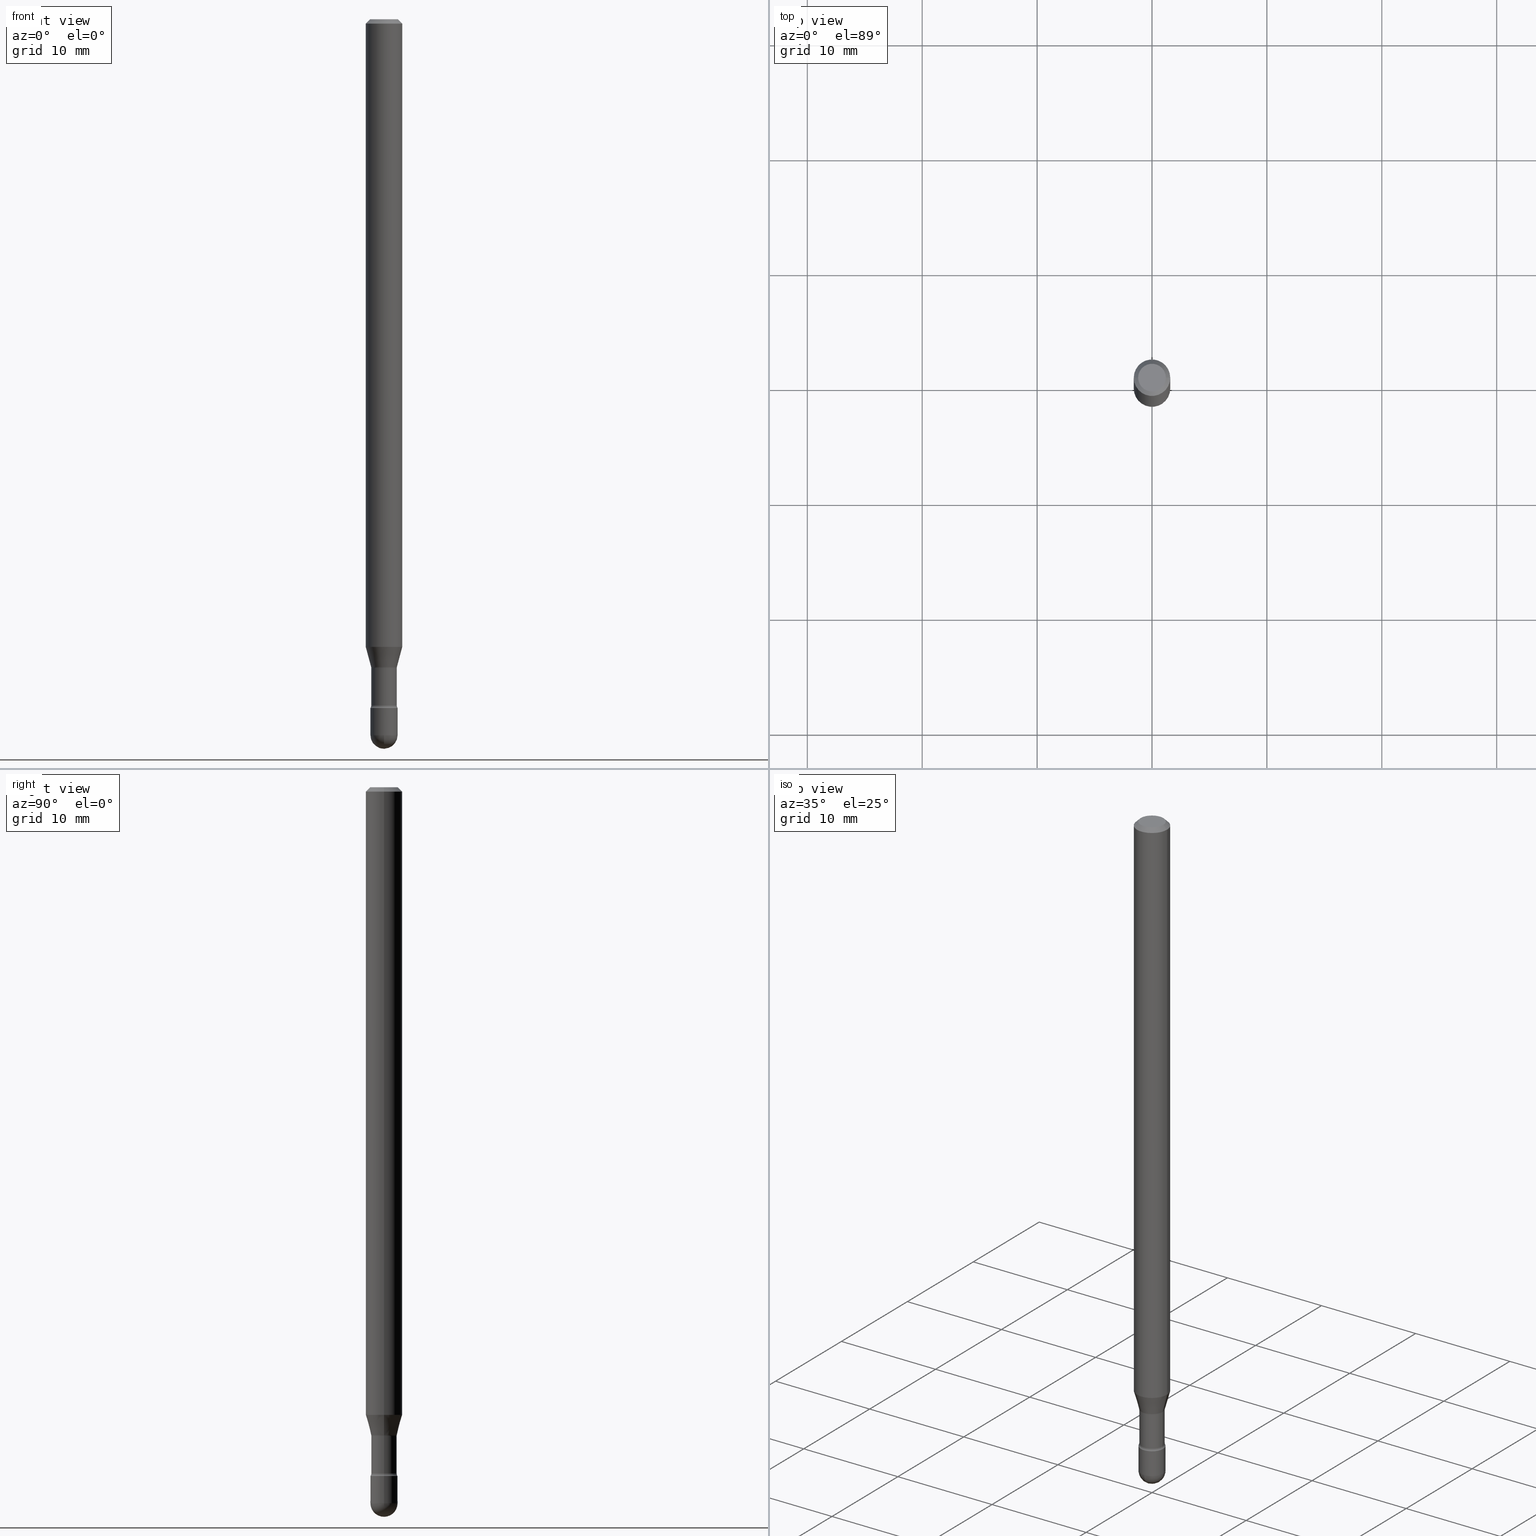
[diagram: canonical four-view strip — front | top / right | iso, engineering-drawing reading convention]
A machine part, canonical four-view strip (front | top / right | iso — engineering-drawing reading convention). The complete STEP part file that produces these views, byte-faithful:
ISO-10303-21;
HEADER;
FILE_DESCRIPTION (( 'STEP AP203' ),
    '1' );
FILE_NAME ('09557.STEP',
    '2024-04-10T00:42:12',
    ( '' ),
    ( '' ),
    'SwSTEP 2.0',
    'SolidWorks 2023',
    '' );
FILE_SCHEMA (( 'CONFIG_CONTROL_DESIGN' ));
ENDSEC;

DATA;
#1 = CC_DESIGN_PERSON_AND_ORGANIZATION_ASSIGNMENT ( #15, #406, ( #519 ) ) ;
#2 = ORIENTED_EDGE ( 'NONE', *, *, #461, .F. ) ;
#3 = AXIS2_PLACEMENT_3D ( 'NONE', #68, #63, #472 ) ;
#4 = DIRECTION ( 'NONE',  ( 1.000000000000000000, -6.982962677686267499E-15, 4.876176775795936353E-29 ) ) ;
#5 = CIRCLE ( 'NONE', #490, 0.04649999999999999967 ) ;
#6 = CARTESIAN_POINT ( 'NONE',  ( -0.06250000000000000000, 4.440892098500642925E-16, 4.780733988912429571E-16 ) ) ;
#7 = APPROVAL_PERSON_ORGANIZATION ( #106, #121, #281 ) ;
#8 = DIRECTION ( 'NONE',  ( -2.445468806185136877E-29, 3.491481338843145188E-15, 1.000000000000000000 ) ) ;
#9 = CARTESIAN_POINT ( 'NONE',  ( 5.999957715975233376E-29, -8.566349464851658011E-15, -2.453500000000000014 ) ) ;
#10 = DIRECTION ( 'NONE',  ( 2.445468806185136597E-29, -3.491481338843145583E-15, -1.000000000000000000 ) ) ;
#11 = DIRECTION ( 'NONE',  ( -2.445468806185136597E-29, 3.491481338843145583E-15, 1.000000000000000000 ) ) ;
#12 = ADVANCED_FACE ( 'NONE', ( #254 ), #35, .T. ) ;
#13 = CARTESIAN_POINT ( 'NONE',  ( -0.04421111260566398804, -7.433781210138750034E-15, -2.219092501787273353 ) ) ;
#14 = DIRECTION ( 'NONE',  ( -2.445468806185136877E-29, 3.491481338843145188E-15, 1.000000000000000000 ) ) ;
#15 = PERSON_AND_ORGANIZATION ( #183, #477 ) ;
#16 = DIRECTION ( 'NONE',  ( -2.445468806185136597E-29, 3.491481338843145583E-15, 1.000000000000000000 ) ) ;
#17 = AXIS2_PLACEMENT_3D ( 'NONE', #200, #376, #76 ) ;
#18 = SECURITY_CLASSIFICATION_LEVEL ( 'unclassified' ) ;
#19 = DIRECTION ( 'NONE',  ( -2.445468806185136597E-29, 3.491481338843145583E-15, 1.000000000000000000 ) ) ;
#20 = DIRECTION ( 'NONE',  ( 1.000000000000000000, -6.982962677686260400E-15, 0.000000000000000000 ) ) ;
#21 = CARTESIAN_POINT ( 'NONE',  ( 5.259805878476644450E-29, -7.509608801466092059E-15, -2.150837444817705446 ) ) ;
#22 = ADVANCED_FACE ( 'NONE', ( #346 ), #43, .T. ) ;
#23 = ORIENTED_EDGE ( 'NONE', *, *, #255, .T. ) ;
#24 = DIRECTION ( 'NONE',  ( -0.2588190451025213501, 5.211531920934551042E-15, 0.9659258262890682012 ) ) ;
#25 = ORIENTED_EDGE ( 'NONE', *, *, #356, .T. ) ;
#26 = SPHERICAL_SURFACE ( 'NONE', #297, 0.04649999999999995109 ) ;
#27 = CARTESIAN_POINT ( 'NONE',  ( 0.04370000000000000273, -8.066630456163594100E-15, -2.222974787463811275 ) ) ;
#28 = AXIS2_PLACEMENT_3D ( 'NONE', #401, #409, #217 ) ;
#29 = LOCAL_TIME ( 20, 42, 12.00000000000000000, #445 ) ;
#30 = ORIENTED_EDGE ( 'NONE', *, *, #164, .F. ) ;
#31 = DIRECTION ( 'NONE',  ( 6.982962677686265922E-15, 1.000000000000000000, -5.874941921858636379E-15 ) ) ;
#32 = ORIENTED_EDGE ( 'NONE', *, *, #528, .F. ) ;
#33 = CC_DESIGN_PERSON_AND_ORGANIZATION_ASSIGNMENT ( #341, #474, ( #480 ) ) ;
#34 = DIRECTION ( 'NONE',  ( 0.000000000000000000, 0.000000000000000000, 1.000000000000000000 ) ) ;
#35 = CYLINDRICAL_SURFACE ( 'NONE', #339, 0.04370000000000005130 ) ;
#36 = AXIS2_PLACEMENT_3D ( 'NONE', #74, #80, #262 ) ;
#37 = DIRECTION ( 'NONE',  ( -2.445468806185136597E-29, 3.491481338843145583E-15, 1.000000000000000000 ) ) ;
#38 = CARTESIAN_POINT ( 'NONE',  ( -3.304023721283863841E-16, -0.04650000000000854145, -2.453500000000000014 ) ) ;
#39 = AXIS2_PLACEMENT_3D ( 'NONE', #558, #517, #129 ) ;
#40 = AXIS2_PLACEMENT_3D ( 'NONE', #331, #458, #453 ) ;
#41 = DIRECTION ( 'NONE',  ( -2.445468806185136597E-29, 3.491481338843145583E-15, 1.000000000000000000 ) ) ;
#42 = TOROIDAL_SURFACE ( 'NONE', #87, 0.05870000000000000911, 0.01499999999999991618 ) ;
#43 = CYLINDRICAL_SURFACE ( 'NONE', #426, 0.04649999999999999967 ) ;
#44 = CIRCLE ( 'NONE', #419, 0.06250000000000000000 ) ;
#45 = MANIFOLD_SOLID_BREP ( 'Body-Move/Copy2[2]', #347 ) ;
#46 = DIRECTION ( 'NONE',  ( 1.000000000000000000, -6.982962677686266711E-15, 4.858289198259657046E-29 ) ) ;
#47 = EDGE_CURVE ( 'NONE', #486, #62, #532, .T. ) ;
#48 = FACE_OUTER_BOUND ( 'NONE', #512, .T. ) ;
#49 = PLANE ( 'NONE',  #167 ) ;
#50 = DIRECTION ( 'NONE',  ( 0.2588190451025213501, 1.565188264969621968E-15, 0.9659258262890682012 ) ) ;
#51 = PLANE ( 'NONE',  #504 ) ;
#52 = CALENDAR_DATE ( 2024, 9, 4 ) ;
#53 = CIRCLE ( 'NONE', #476, 0.04649999999999995109 ) ;
#54 = ORIENTED_EDGE ( 'NONE', *, *, #418, .F. ) ;
#55 = DATE_AND_TIME ( #52, #29 ) ;
#56 = DIRECTION ( 'NONE',  ( -2.445468806185136597E-29, 3.491481338843145583E-15, 1.000000000000000000 ) ) ;
#57 = COORDINATED_UNIVERSAL_TIME_OFFSET ( 5, 0, .BEHIND. ) ;
#58 = ORIENTED_EDGE ( 'NONE', *, *, #219, .F. ) ;
#59 = DIRECTION ( 'NONE',  ( 1.000000000000000000, -6.982962677686266711E-15, 4.852736867747366207E-29 ) ) ;
#60 = DIRECTION ( 'NONE',  ( 1.000000000000000000, -6.982962677686266711E-15, 4.852736867747366207E-29 ) ) ;
#61 = EDGE_CURVE ( 'NONE', #411, #372, #156, .T. ) ;
#62 = VERTEX_POINT ( 'NONE', #75 ) ;
#63 = DIRECTION ( 'NONE',  ( -2.445468806185136597E-29, 3.491481338843145583E-15, 1.000000000000000000 ) ) ;
#64 = CIRCLE ( 'NONE', #3, 0.04370000000000009294 ) ;
#65 = ORIENTED_EDGE ( 'NONE', *, *, #150, .F. ) ;
#66 = CARTESIAN_POINT ( 'NONE',  ( 0.000000000000000000, 0.000000000000000000, 0.000000000000000000 ) ) ;
#67 = ORIENTED_EDGE ( 'NONE', *, *, #228, .F. ) ;
#68 = CARTESIAN_POINT ( 'NONE',  ( 5.749964850443326902E-29, -8.209425907846575104E-15, -2.351273030308291823 ) ) ;
#69 = ORIENTED_EDGE ( 'NONE', *, *, #71, .T. ) ;
#70 = DIRECTION ( 'NONE',  ( 1.000000000000000000, -6.982962677686266711E-15, 0.000000000000000000 ) ) ;
#71 = EDGE_CURVE ( 'NONE', #555, #246, #256, .T. ) ;
#72 = VECTOR ( 'NONE', #177, 39.37007874015748143 ) ;
#73 = ORIENTED_EDGE ( 'NONE', *, *, #435, .F. ) ;
#74 = CARTESIAN_POINT ( 'NONE',  ( 3.668203209277725232E-31, -5.237222008264747365E-17, -0.01500000000000008271 ) ) ;
#75 = CARTESIAN_POINT ( 'NONE',  ( 0.04649999999999995803, -8.564603724182234141E-15, -2.359999999999999876 ) ) ;
#76 = DIRECTION ( 'NONE',  ( 1.000000000000000000, -6.982962677686280121E-15, 0.000000000000000000 ) ) ;
#77 = PERSON_AND_ORGANIZATION ( #183, #477 ) ;
#78 = AXIS2_PLACEMENT_3D ( 'NONE', #116, #310, #479 ) ;
#79 = CC_DESIGN_PERSON_AND_ORGANIZATION_ASSIGNMENT ( #184, #284, ( #349 ) ) ;
#80 = DIRECTION ( 'NONE',  ( 2.445468806185136597E-29, -3.491481338843145583E-15, -1.000000000000000000 ) ) ;
#81 = ORIENTED_EDGE ( 'NONE', *, *, #435, .T. ) ;
#82 = VERTEX_POINT ( 'NONE', #38 ) ;
#83 = ADVANCED_FACE ( 'NONE', ( #560 ), #379, .F. ) ;
#84 = AXIS2_PLACEMENT_3D ( 'NONE', #226, #233, #20 ) ;
#85 = CARTESIAN_POINT ( 'NONE',  ( 5.999957715975233376E-29, -8.566349464851658011E-15, -2.453500000000000014 ) ) ;
#86 = CIRCLE ( 'NONE', #231, 0.01500000000000001853 ) ;
#87 = AXIS2_PLACEMENT_3D ( 'NONE', #538, #227, #416 ) ;
#88 = CARTESIAN_POINT ( 'NONE',  ( 5.999957715975233376E-29, -8.566349464851658011E-15, -2.453500000000000014 ) ) ;
#89 = DIRECTION ( 'NONE',  ( 2.438088387897960049E-29, -3.491481338843145188E-15, -1.000000000000000000 ) ) ;
#90 = CARTESIAN_POINT ( 'NONE',  ( -0.04749999999999999362, 3.578768372314208041E-16, -8.274703207154778150E-17 ) ) ;
#91 = DIRECTION ( 'NONE',  ( 1.000000000000000000, -6.982962677686259611E-15, 0.000000000000000000 ) ) ;
#92 = EDGE_CURVE ( 'NONE', #489, #343, #399, .T. ) ;
#93 = DIRECTION ( 'NONE',  ( 1.000000000000000000, -6.982962677686263555E-15, 0.000000000000000000 ) ) ;
#94 = DIRECTION ( 'NONE',  ( 1.000000000000000000, -6.982962677686267499E-15, 4.884662768193073002E-29 ) ) ;
#95 = ORIENTED_EDGE ( 'NONE', *, *, #210, .T. ) ;
#96 = EDGE_CURVE ( 'NONE', #372, #411, #283, .T. ) ;
#97 = CARTESIAN_POINT ( 'NONE',  ( 0.06250000000000000000, -4.364351673553899931E-16, 4.780733988912490708E-16 ) ) ;
#98 = AXIS2_PLACEMENT_3D ( 'NONE', #161, #218, #70 ) ;
#99 = FACE_OUTER_BOUND ( 'NONE', #199, .T. ) ;
#100 = AXIS2_PLACEMENT_3D ( 'NONE', #322, #241, #91 ) ;
#101 = ORIENTED_EDGE ( 'NONE', *, *, #238, .F. ) ;
#102 = DIRECTION ( 'NONE',  ( 1.000000000000000000, -6.982962677686263555E-15, 0.000000000000000000 ) ) ;
#103 = CARTESIAN_POINT ( 'NONE',  ( 5.749964850443326902E-29, -8.209425907846575104E-15, -2.351273030308291823 ) ) ;
#104 = DIRECTION ( 'NONE',  ( -2.445468806185136597E-29, 3.491481338843145583E-15, 1.000000000000000000 ) ) ;
#105 = EDGE_CURVE ( 'NONE', #456, #555, #288, .T. ) ;
#106 = PERSON_AND_ORGANIZATION ( #183, #477 ) ;
#107 = ORIENTED_EDGE ( 'NONE', *, *, #112, .F. ) ;
#108 = AXIS2_PLACEMENT_3D ( 'NONE', #275, #180, #192 ) ;
#109 = EDGE_LOOP ( 'NONE', ( #240, #209, #452, #269, #338 ) ) ;
#110 = EDGE_CURVE ( 'NONE', #163, #345, #364, .T. ) ;
#111 = ORIENTED_EDGE ( 'NONE', *, *, #96, .T. ) ;
#112 = EDGE_CURVE ( 'NONE', #377, #293, #404, .T. ) ;
#113 = ORIENTED_EDGE ( 'NONE', *, *, #440, .F. ) ;
#114 = AXIS2_PLACEMENT_3D ( 'NONE', #366, #143, #327 ) ;
#115 = CIRCLE ( 'NONE', #392, 0.04649999999999999967 ) ;
#116 = CARTESIAN_POINT ( 'NONE',  ( 5.771306382596922099E-29, -8.239895959669823433E-15, -2.359999999999999876 ) ) ;
#117 = AXIS2_PLACEMENT_3D ( 'NONE', #324, #292, #102 ) ;
#118 = CARTESIAN_POINT ( 'NONE',  ( 5.771306382596922099E-29, -8.239895959669823433E-15, -2.359999999999999876 ) ) ;
#119 = LINE ( 'NONE', #481, #354 ) ;
#120 = CALENDAR_DATE ( 2024, 9, 4 ) ;
#121 = APPROVAL ( #294, 'UNSPECIFIED' ) ;
#122 = CIRCLE ( 'NONE', #380, 0.04370000000000000273 ) ;
#123 = CARTESIAN_POINT ( 'NONE',  ( 5.749964850443326902E-29, -8.209425907846575104E-15, -2.351273030308291823 ) ) ;
#124 = ORIENTED_EDGE ( 'NONE', *, *, #61, .T. ) ;
#125 = ADVANCED_FACE ( 'NONE', ( #529 ), #230, .F. ) ;
#126 = DIRECTION ( 'NONE',  ( -2.445468806185136597E-29, 3.491481338843145583E-15, 1.000000000000000000 ) ) ;
#127 = EDGE_CURVE ( 'NONE', #355, #456, #340, .T. ) ;
#128 = COORDINATED_UNIVERSAL_TIME_OFFSET ( 5, 0, .BEHIND. ) ;
#129 = DIRECTION ( 'NONE',  ( 1.000000000000000000, -6.982962677686260400E-15, 0.000000000000000000 ) ) ;
#130 = ORIENTED_EDGE ( 'NONE', *, *, #210, .F. ) ;
#131 = FACE_OUTER_BOUND ( 'NONE', #550, .T. ) ;
#132 = FACE_OUTER_BOUND ( 'NONE', #109, .T. ) ;
#133 = DIRECTION ( 'NONE',  ( -1.000000000000000000, 6.982962677686266711E-15, 0.000000000000000000 ) ) ;
#134 = ORIENTED_EDGE ( 'NONE', *, *, #164, .T. ) ;
#135 = CYLINDRICAL_SURFACE ( 'NONE', #365, 0.04370000000000005130 ) ;
#136 = CIRCLE ( 'NONE', #40, 0.01499999999999991618 ) ;
#137 = DIRECTION ( 'NONE',  ( 1.000000000000000000, -6.982962677686263555E-15, 0.000000000000000000 ) ) ;
#138 = CARTESIAN_POINT ( 'NONE',  ( 5.999957715975233376E-29, -8.566349464851658011E-15, -2.453500000000000014 ) ) ;
#139 = DIRECTION ( 'NONE',  ( -2.445468806185136597E-29, 3.491481338843145583E-15, 1.000000000000000000 ) ) ;
#140 = DIRECTION ( 'NONE',  ( -2.438088387897960049E-29, 3.491481338843145188E-15, 1.000000000000000000 ) ) ;
#141 = PRODUCT_RELATED_PRODUCT_CATEGORY ( 'detail', '', ( #332 ) ) ;
#142 = ORIENTED_EDGE ( 'NONE', *, *, #208, .F. ) ;
#143 = DIRECTION ( 'NONE',  ( -2.445468806185136597E-29, 3.491481338843145583E-15, 1.000000000000000000 ) ) ;
#144 = ORIENTED_EDGE ( 'NONE', *, *, #359, .T. ) ;
#145 = CARTESIAN_POINT ( 'NONE',  ( 3.247077645124712036E-16, 0.04649999999999141626, -2.453500000000000458 ) ) ;
#146 = VECTOR ( 'NONE', #496, 39.37007874015748143 ) ;
#147 = CYLINDRICAL_SURFACE ( 'NONE', #525, 0.06250000000000000000 ) ;
#148 = CARTESIAN_POINT ( 'NONE',  ( -0.06250000000000000000, 3.840629472727441958E-16, -0.01500000000000008271 ) ) ;
#149 = ORIENTED_EDGE ( 'NONE', *, *, #461, .T. ) ;
#150 = EDGE_CURVE ( 'NONE', #487, #547, #502, .T. ) ;
#151 = DIRECTION ( 'NONE',  ( -1.000000000000000000, 6.982962677686265922E-15, -4.883557194083111780E-29 ) ) ;
#152 = VERTEX_POINT ( 'NONE', #315 ) ;
#153 = DIRECTION ( 'NONE',  ( -2.445468806185136597E-29, 3.491481338843145583E-15, 1.000000000000000000 ) ) ;
#154 = DIRECTION ( 'NONE',  ( -2.445468806185136597E-29, 3.491481338843145583E-15, 1.000000000000000000 ) ) ;
#155 = ORIENTED_EDGE ( 'NONE', *, *, #96, .F. ) ;
#156 = CIRCLE ( 'NONE', #78, 0.04649999999999999967 ) ;
#157 = VECTOR ( 'NONE', #216, 39.37007874015748143 ) ;
#158 = ORIENTED_EDGE ( 'NONE', *, *, #219, .T. ) ;
#159 = DIRECTION ( 'NONE',  ( -2.438088387897960049E-29, 3.491481338843145188E-15, 1.000000000000000000 ) ) ;
#160 = ORIENTED_EDGE ( 'NONE', *, *, #110, .F. ) ;
#161 = CARTESIAN_POINT ( 'NONE',  ( 3.668203209277725232E-31, -5.237222008264747365E-17, -0.01500000000000008271 ) ) ;
#162 = CARTESIAN_POINT ( 'NONE',  ( 0.04421111260566398804, -8.056644608421349560E-15, -2.219092501787273353 ) ) ;
#163 = VERTEX_POINT ( 'NONE', #90 ) ;
#164 = EDGE_CURVE ( 'NONE', #357, #62, #136, .T. ) ;
#165 = CIRCLE ( 'NONE', #518, 0.04370000000000009294 ) ;
#166 = ORIENTED_EDGE ( 'NONE', *, *, #260, .T. ) ;
#167 = AXIS2_PLACEMENT_3D ( 'NONE', #454, #140, #237 ) ;
#168 = EDGE_CURVE ( 'NONE', #555, #487, #485, .T. ) ;
#169 = SHAPE_DEFINITION_REPRESENTATION ( #430, #546 ) ;
#170 = APPROVAL_ROLE ( '' ) ;
#171 = CIRCLE ( 'NONE', #244, 0.01499999999999991618 ) ;
#172 = AXIS2_PLACEMENT_3D ( 'NONE', #367, #412, #60 ) ;
#173 = DATE_TIME_ROLE ( 'classification_date' ) ;
#174 = ORIENTED_EDGE ( 'NONE', *, *, #264, .T. ) ;
#175 = CARTESIAN_POINT ( 'NONE',  ( -1.169113584055446105E-44, 1.669184350826100908E-30, 4.780733988912460139E-16 ) ) ;
#176 = ADVANCED_FACE ( 'NONE', ( #545 ), #147, .T. ) ;
#177 = DIRECTION ( 'NONE',  ( -2.445468806185136877E-29, 3.491481338843145188E-15, 1.000000000000000000 ) ) ;
#178 = APPROVAL_STATUS ( 'not_yet_approved' ) ;
#179 = VECTOR ( 'NONE', #8, 39.37007874015748143 ) ;
#180 = DIRECTION ( 'NONE',  ( -2.445468806185136597E-29, 3.491481338843145583E-15, 1.000000000000000000 ) ) ;
#181 = CC_DESIGN_PERSON_AND_ORGANIZATION_ASSIGNMENT ( #263, #530, ( #332 ) ) ;
#182 = CARTESIAN_POINT ( 'NONE',  ( -0.04370000000000009294, -7.904206159930393879E-15, -2.351273030308291823 ) ) ;
#183 = PERSON ( 'UNSPECIFIED', 'UNSPECIFIED', 'UNSPECIFIED', ('UNSPECIFIED'), ('UNSPECIFIED'), ('UNSPECIFIED') ) ;
#184 = PERSON_AND_ORGANIZATION ( #183, #477 ) ;
#185 = CARTESIAN_POINT ( 'NONE',  ( -0.05870000000000000911, -7.792337321955396477E-15, -2.351273030308291823 ) ) ;
#186 = DIMENSIONAL_EXPONENTS ( 1.000000000000000000, 0.000000000000000000, 0.000000000000000000, 0.000000000000000000, 0.000000000000000000, 0.000000000000000000, 0.000000000000000000 ) ;
#187 = DIRECTION ( 'NONE',  ( -2.445468806185136597E-29, 3.491481338843145583E-15, 1.000000000000000000 ) ) ;
#188 = CARTESIAN_POINT ( 'NONE',  ( 0.06250000000000000000, -4.888073874380391431E-16, -0.01500000000000008271 ) ) ;
#189 = EDGE_LOOP ( 'NONE', ( #124, #111 ) ) ;
#190 = PERSON_AND_ORGANIZATION_ROLE ( 'creator' ) ;
#191 = LINE ( 'NONE', #290, #157 ) ;
#192 = DIRECTION ( 'NONE',  ( 1.000000000000000000, -6.982962677686262766E-15, 0.000000000000000000 ) ) ;
#193 = EDGE_CURVE ( 'NONE', #152, #377, #5, .T. ) ;
#194 = ORIENTED_EDGE ( 'NONE', *, *, #168, .F. ) ;
#195 = ADVANCED_FACE ( 'NONE', ( #132 ), #446, .T. ) ;
#196 = VECTOR ( 'NONE', #229, 39.37007874015748143 ) ;
#197 = CONICAL_SURFACE ( 'NONE', #36, 0.06250000000000000000, 0.7853981633974483900 ) ;
#198 = DIRECTION ( 'NONE',  ( -1.000000000000000000, 6.982962677686265922E-15, -4.876176775795935793E-29 ) ) ;
#199 = EDGE_LOOP ( 'NONE', ( #67, #174, #375, #30 ) ) ;
#200 = CARTESIAN_POINT ( 'NONE',  ( 5.999957715975233376E-29, -8.566349464851658011E-15, -2.453500000000000014 ) ) ;
#201 = ORIENTED_EDGE ( 'NONE', *, *, #439, .T. ) ;
#202 = DIRECTION ( 'NONE',  ( 1.000000000000000000, -6.982962677686263555E-15, 0.000000000000000000 ) ) ;
#203 = ORIENTED_EDGE ( 'NONE', *, *, #105, .F. ) ;
#204 = EDGE_CURVE ( 'NONE', #345, #547, #191, .T. ) ;
#205 = CIRCLE ( 'NONE', #428, 0.04370000000000000273 ) ;
#206 = ORIENTED_EDGE ( 'NONE', *, *, #440, .T. ) ;
#207 = DIRECTION ( 'NONE',  ( 1.000000000000000000, -6.982962677686267499E-15, 4.876176775795936353E-29 ) ) ;
#208 = EDGE_CURVE ( 'NONE', #345, #163, #348, .T. ) ;
#209 = ORIENTED_EDGE ( 'NONE', *, *, #326, .T. ) ;
#210 = EDGE_CURVE ( 'NONE', #456, #343, #86, .T. ) ;
#211 = CARTESIAN_POINT ( 'NONE',  ( 5.436215499678784243E-29, -7.761474987148704232E-15, -2.222974787463811275 ) ) ;
#212 = CLOSED_SHELL ( 'NONE', ( #195, #236, #224, #410, #22 ) ) ;
#213 = CONICAL_SURFACE ( 'NONE', #535, 0.04421111260566398804, 0.2617993877991500740 ) ;
#214 =( GEOMETRIC_REPRESENTATION_CONTEXT ( 3 ) GLOBAL_UNCERTAINTY_ASSIGNED_CONTEXT ( ( #438 ) ) GLOBAL_UNIT_ASSIGNED_CONTEXT ( ( #552, #342, #252 ) ) REPRESENTATION_CONTEXT ( 'NONE', 'WORKASPACE' ) );
#215 = DESIGN_CONTEXT ( 'detailed design', #301, 'design' ) ;
#216 = DIRECTION ( 'NONE',  ( 0.7071067811865475727, -7.319954787623256045E-15, -0.7071067811865474617 ) ) ;
#217 = DIRECTION ( 'NONE',  ( 1.000000000000000000, -6.982962677686267499E-15, 4.884662768193073002E-29 ) ) ;
#218 = DIRECTION ( 'NONE',  ( -2.445468806185136597E-29, 3.491481338843145583E-15, 1.000000000000000000 ) ) ;
#219 = EDGE_CURVE ( 'NONE', #547, #246, #44, .T. ) ;
#220 = ADVANCED_FACE ( 'NONE', ( #353 ), #197, .T. ) ;
#221 = ORIENTED_EDGE ( 'NONE', *, *, #238, .T. ) ;
#222 = CIRCLE ( 'NONE', #286, 0.04649999999999995109 ) ;
#223 = ORIENTED_EDGE ( 'NONE', *, *, #326, .F. ) ;
#224 = ADVANCED_FACE ( 'NONE', ( #390 ), #566, .T. ) ;
#225 = ORIENTED_EDGE ( 'NONE', *, *, #344, .T. ) ;
#226 = CARTESIAN_POINT ( 'NONE',  ( 5.771306382596922099E-29, -8.239895959669823433E-15, -2.359999999999999876 ) ) ;
#227 = DIRECTION ( 'NONE',  ( -2.445468806185136597E-29, 3.491481338843145583E-15, 1.000000000000000000 ) ) ;
#228 = EDGE_CURVE ( 'NONE', #489, #357, #165, .T. ) ;
#229 = DIRECTION ( 'NONE',  ( -2.445468806185136877E-29, 3.491481338843145188E-15, 1.000000000000000000 ) ) ;
#230 = TOROIDAL_SURFACE ( 'NONE', #268, 0.05870000000000000218, 0.01500000000000002373 ) ;
#231 = AXIS2_PLACEMENT_3D ( 'NONE', #397, #460, #523 ) ;
#232 = CIRCLE ( 'NONE', #100, 0.01500000000000001853 ) ;
#233 = DIRECTION ( 'NONE',  ( -2.445468806185136597E-29, 3.491481338843145583E-15, 1.000000000000000000 ) ) ;
#234 =( LENGTH_UNIT ( ) NAMED_UNIT ( * ) SI_UNIT ( $, .METRE. ) );
#235 = ORIENTED_EDGE ( 'NONE', *, *, #498, .T. ) ;
#236 = ADVANCED_FACE ( 'NONE', ( #247 ), #389, .T. ) ;
#237 = DIRECTION ( 'NONE',  ( 1.000000000000000000, -6.982962677686265922E-15, 4.876176775795935793E-29 ) ) ;
#238 = EDGE_CURVE ( 'NONE', #246, #547, #451, .T. ) ;
#239 = CALENDAR_DATE ( 2024, 9, 4 ) ;
#240 = ORIENTED_EDGE ( 'NONE', *, *, #112, .T. ) ;
#241 = DIRECTION ( 'NONE',  ( -6.982962677686266711E-15, -1.000000000000000000, 3.491481338843145583E-15 ) ) ;
#242 = ORIENTED_EDGE ( 'NONE', *, *, #47, .F. ) ;
#243 = CARTESIAN_POINT ( 'NONE',  ( 5.999957715975233376E-29, -8.566349464851658011E-15, -2.453500000000000014 ) ) ;
#244 = AXIS2_PLACEMENT_3D ( 'NONE', #185, #311, #488 ) ;
#245 = CC_DESIGN_APPROVAL ( #352, ( #349 ) ) ;
#246 = VERTEX_POINT ( 'NONE', #407 ) ;
#247 = FACE_OUTER_BOUND ( 'NONE', #475, .T. ) ;
#248 = EDGE_LOOP ( 'NONE', ( #325, #503, #303, #32 ) ) ;
#249 = CARTESIAN_POINT ( 'NONE',  ( 0.04749999999999999362, -4.035134999187581581E-16, -8.274703207154280181E-17 ) ) ;
#250 = APPLICATION_PROTOCOL_DEFINITION ( 'international standard', 'config_control_design', 1994, #351 ) ;
#251 = ORIENTED_EDGE ( 'NONE', *, *, #520, .T. ) ;
#252 =( NAMED_UNIT ( * ) SI_UNIT ( $, .STERADIAN. ) SOLID_ANGLE_UNIT ( ) );
#253 = CONICAL_SURFACE ( 'NONE', #117, 0.04421111260566398804, 0.2617993877991500740 ) ;
#254 = FACE_OUTER_BOUND ( 'NONE', #282, .T. ) ;
#255 = EDGE_CURVE ( 'NONE', #384, #377, #53, .T. ) ;
#256 = LINE ( 'NONE', #6, #371 ) ;
#257 = APPROVAL_DATE_TIME ( #413, #121 ) ;
#258 = CIRCLE ( 'NONE', #306, 0.04649999999999999967 ) ;
#259 = LOCAL_TIME ( 20, 42, 12.00000000000000000, #128 ) ;
#260 = EDGE_CURVE ( 'NONE', #343, #541, #205, .T. ) ;
#261 = APPROVAL_STATUS ( 'not_yet_approved' ) ;
#262 = DIRECTION ( 'NONE',  ( -1.000000000000000000, 6.982962677686266711E-15, 0.000000000000000000 ) ) ;
#263 = PERSON_AND_ORGANIZATION ( #183, #477 ) ;
#264 = EDGE_CURVE ( 'NONE', #489, #486, #171, .T. ) ;
#265 = ORIENTED_EDGE ( 'NONE', *, *, #204, .F. ) ;
#266 = ORIENTED_EDGE ( 'NONE', *, *, #432, .F. ) ;
#267 = LINE ( 'NONE', #280, #72 ) ;
#268 = AXIS2_PLACEMENT_3D ( 'NONE', #271, #16, #533 ) ;
#269 = ORIENTED_EDGE ( 'NONE', *, *, #439, .F. ) ;
#270 = APPROVAL_PERSON_ORGANIZATION ( #383, #424, #531 ) ;
#271 = CARTESIAN_POINT ( 'NONE',  ( 5.436215499678784243E-29, -7.761474987148704232E-15, -2.222974787463811275 ) ) ;
#272 = CYLINDRICAL_SURFACE ( 'NONE', #172, 0.06250000000000000000 ) ;
#273 = DIRECTION ( 'NONE',  ( 1.000000000000000000, -6.982962677686265922E-15, 4.883557194083112340E-29 ) ) ;
#274 = CARTESIAN_POINT ( 'NONE',  ( 3.668203209277725232E-31, -5.237222008264747365E-17, -0.01500000000000008271 ) ) ;
#275 = CARTESIAN_POINT ( 'NONE',  ( 5.259805878476644450E-29, -7.509608801466092059E-15, -2.150837444817705446 ) ) ;
#276 = LINE ( 'NONE', #279, #466 ) ;
#277 = FACE_OUTER_BOUND ( 'NONE', #336, .T. ) ;
#278 = CARTESIAN_POINT ( 'NONE',  ( -0.04370000000000000273, -7.674943271970475374E-15, -2.222974787463811275 ) ) ;
#279 = CARTESIAN_POINT ( 'NONE',  ( 0.04421111260566398804, -8.056644608421349560E-15, -2.219092501787273353 ) ) ;
#280 = CARTESIAN_POINT ( 'NONE',  ( 0.04370000000000005130, -3.051554690148885367E-16, 4.780733988912481833E-16 ) ) ;
#281 = APPROVAL_ROLE ( '' ) ;
#282 = EDGE_LOOP ( 'NONE', ( #144, #471, #266, #113 ) ) ;
#283 = CIRCLE ( 'NONE', #84, 0.04649999999999999967 ) ;
#284 = PERSON_AND_ORGANIZATION_ROLE ( 'classification_officer' ) ;
#285 = DIRECTION ( 'NONE',  ( 1.000000000000000000, -6.982962677686266711E-15, 0.000000000000000000 ) ) ;
#286 = AXIS2_PLACEMENT_3D ( 'NONE', #386, #562, #522 ) ;
#287 = CC_DESIGN_APPROVAL ( #424, ( #519 ) ) ;
#288 = LINE ( 'NONE', #13, #296 ) ;
#289 = ORIENTED_EDGE ( 'NONE', *, *, #264, .F. ) ;
#290 = CARTESIAN_POINT ( 'NONE',  ( 0.06250000000000000000, -4.811533449433681963E-16, -0.01500000000000008271 ) ) ;
#291 = FACE_OUTER_BOUND ( 'NONE', #248, .T. ) ;
#292 = DIRECTION ( 'NONE',  ( -2.445468806185136597E-29, 3.491481338843145583E-15, 1.000000000000000000 ) ) ;
#293 = VERTEX_POINT ( 'NONE', #441 ) ;
#294 = APPROVAL_STATUS ( 'not_yet_approved' ) ;
#295 = ORIENTED_EDGE ( 'NONE', *, *, #193, .F. ) ;
#296 = VECTOR ( 'NONE', #24, 39.37007874015747433 ) ;
#297 = AXIS2_PLACEMENT_3D ( 'NONE', #243, #151, #31 ) ;
#298 = ORIENTED_EDGE ( 'NONE', *, *, #255, .F. ) ;
#299 = COORDINATED_UNIVERSAL_TIME_OFFSET ( 5, 0, .BEHIND. ) ;
#300 = EDGE_LOOP ( 'NONE', ( #265, #160, #235, #221 ) ) ;
#301 = APPLICATION_CONTEXT ( 'configuration controlled 3d designs of mechanical parts and assemblies' ) ;
#302 = DIRECTION ( 'NONE',  ( 6.982962677686265922E-15, 1.000000000000000000, -5.874941921858636379E-15 ) ) ;
#303 = ORIENTED_EDGE ( 'NONE', *, *, #559, .F. ) ;
#304 = CONICAL_SURFACE ( 'NONE', #373, 0.06250000000000000000, 0.7853981633974483900 ) ;
#305 = DIRECTION ( 'NONE',  ( -2.445468806185136597E-29, 3.491481338843145583E-15, 1.000000000000000000 ) ) ;
#306 = AXIS2_PLACEMENT_3D ( 'NONE', #459, #104, #478 ) ;
#307 = AXIS2_PLACEMENT_3D ( 'NONE', #66, #34, #470 ) ;
#308 = ORIENTED_EDGE ( 'NONE', *, *, #150, .T. ) ;
#309 = DIRECTION ( 'NONE',  ( 1.000000000000000000, -6.982962677686272233E-15, 4.883557194083115143E-29 ) ) ;
#310 = DIRECTION ( 'NONE',  ( -2.445468806185136597E-29, 3.491481338843145583E-15, 1.000000000000000000 ) ) ;
#311 = DIRECTION ( 'NONE',  ( 7.105427357601001859E-15, 1.000000000000000000, -3.491481338843145583E-15 ) ) ;
#312 = DATE_AND_TIME ( #120, #259 ) ;
#313 = ORIENTED_EDGE ( 'NONE', *, *, #204, .T. ) ;
#314 = CARTESIAN_POINT ( 'NONE',  ( 5.426721491160110379E-29, -7.747920059157014434E-15, -2.219092501787273353 ) ) ;
#315 = CARTESIAN_POINT ( 'NONE',  ( 0.04649999999999999967, -8.727830476773153796E-15, -2.453500000000000014 ) ) ;
#316 = CARTESIAN_POINT ( 'NONE',  ( -0.06250000000000000000, -7.065519591616030231E-15, -2.150837444817705446 ) ) ;
#317 = CARTESIAN_POINT ( 'NONE',  ( 3.668203209277725232E-31, -5.237222008264747365E-17, -0.01500000000000008271 ) ) ;
#318 = TOROIDAL_SURFACE ( 'NONE', #554, 0.05870000000000000911, 0.01499999999999991618 ) ;
#319 = ORIENTED_EDGE ( 'NONE', *, *, #520, .F. ) ;
#320 = AXIS2_PLACEMENT_3D ( 'NONE', #21, #333, #500 ) ;
#321 = CARTESIAN_POINT ( 'NONE',  ( -0.04370000000000005130, 3.105071755271658714E-16, 4.780733988912439432E-16 ) ) ;
#322 = CARTESIAN_POINT ( 'NONE',  ( 0.05870000000000000218, -8.171374896328889047E-15, -2.222974787463811275 ) ) ;
#323 = DIRECTION ( 'NONE',  ( 1.000000000000000000, -6.982962677686280121E-15, 0.000000000000000000 ) ) ;
#324 = CARTESIAN_POINT ( 'NONE',  ( 5.426721491160110379E-29, -7.747920059157014434E-15, -2.219092501787273353 ) ) ;
#325 = ORIENTED_EDGE ( 'NONE', *, *, #127, .T. ) ;
#326 = EDGE_CURVE ( 'NONE', #293, #372, #524, .T. ) ;
#327 = DIRECTION ( 'NONE',  ( 1.000000000000000000, -6.982962677686263555E-15, 4.883557194083111780E-29 ) ) ;
#328 = EDGE_LOOP ( 'NONE', ( #527, #468, #308, #101 ) ) ;
#329 = CIRCLE ( 'NONE', #514, 0.04421111260566398804 ) ;
#330 = LOCAL_TIME ( 20, 42, 12.00000000000000000, #299 ) ;
#331 = CARTESIAN_POINT ( 'NONE',  ( 0.05870000000000000911, -8.619325817026758341E-15, -2.351273030308291823 ) ) ;
#332 = PRODUCT ( '09557', '09557', '', ( #422 ) ) ;
#333 = DIRECTION ( 'NONE',  ( -2.445468806185136597E-29, 3.491481338843145583E-15, 1.000000000000000000 ) ) ;
#334 = EDGE_LOOP ( 'NONE', ( #391, #69, #58, #65 ) ) ;
#335 = ADVANCED_FACE ( 'NONE', ( #398 ), #135, .T. ) ;
#336 = EDGE_LOOP ( 'NONE', ( #442, #396 ) ) ;
#337 = ADVANCED_FACE ( 'NONE', ( #131 ), #318, .F. ) ;
#338 = ORIENTED_EDGE ( 'NONE', *, *, #193, .T. ) ;
#339 = AXIS2_PLACEMENT_3D ( 'NONE', #431, #37, #46 ) ;
#340 = CIRCLE ( 'NONE', #443, 0.04421111260566398804 ) ;
#341 = PERSON_AND_ORGANIZATION ( #183, #477 ) ;
#342 =( NAMED_UNIT ( * ) PLANE_ANGLE_UNIT ( ) SI_UNIT ( $, .RADIAN. ) );
#343 = VERTEX_POINT ( 'NONE', #278 ) ;
#344 = EDGE_CURVE ( 'NONE', #456, #355, #329, .T. ) ;
#345 = VERTEX_POINT ( 'NONE', #249 ) ;
#346 = FACE_OUTER_BOUND ( 'NONE', #516, .T. ) ;
#347 = CLOSED_SHELL ( 'NONE', ( #125, #12, #534, #449, #505, #395, #542, #176, #220, #473, #540, #337, #335, #83 ) ) ;
#348 = CIRCLE ( 'NONE', #28, 0.04749999999999999362 ) ;
#349 = SECURITY_CLASSIFICATION ( '', '', #18 ) ;
#350 = EDGE_LOOP ( 'NONE', ( #130, #509, #251, #513 ) ) ;
#351 = APPLICATION_CONTEXT ( 'configuration controlled 3d designs of mechanical parts and assemblies' ) ;
#352 = APPROVAL ( #261, 'UNSPECIFIED' ) ;
#353 = FACE_OUTER_BOUND ( 'NONE', #300, .T. ) ;
#354 = VECTOR ( 'NONE', #14, 39.37007874015748143 ) ;
#355 = VERTEX_POINT ( 'NONE', #162 ) ;
#356 = EDGE_CURVE ( 'NONE', #62, #486, #258, .T. ) ;
#357 = VERTEX_POINT ( 'NONE', #564 ) ;
#358 = DIRECTION ( 'NONE',  ( 1.000000000000000000, -6.982962677686266711E-15, 4.858289198259657046E-29 ) ) ;
#359 = EDGE_CURVE ( 'NONE', #357, #489, #64, .T. ) ;
#360 = DIRECTION ( 'NONE',  ( -2.445468806185136597E-29, 3.491481338843145583E-15, 1.000000000000000000 ) ) ;
#361 = ORIENTED_EDGE ( 'NONE', *, *, #92, .F. ) ;
#362 = CARTESIAN_POINT ( 'NONE',  ( -0.04649999999999999967, 3.304023721284465841E-16, -2.287304816968531530E-30 ) ) ;
#363 = DIRECTION ( 'NONE',  ( 1.000000000000000000, -6.982962677686280121E-15, 0.000000000000000000 ) ) ;
#364 = CIRCLE ( 'NONE', #436, 0.04749999999999999362 ) ;
#365 = AXIS2_PLACEMENT_3D ( 'NONE', #175, #495, #358 ) ;
#366 = CARTESIAN_POINT ( 'NONE',  ( 5.436215499678784243E-29, -7.761474987148704232E-15, -2.222974787463811275 ) ) ;
#367 = CARTESIAN_POINT ( 'NONE',  ( -1.169113584055446105E-44, 1.669184350826100908E-30, 4.780733988912460139E-16 ) ) ;
#368 = DATE_AND_TIME ( #506, #420 ) ;
#369 = ORIENTED_EDGE ( 'NONE', *, *, #498, .F. ) ;
#370 = CARTESIAN_POINT ( 'NONE',  ( 5.426721491160110379E-29, -7.747920059157014434E-15, -2.219092501787273353 ) ) ;
#371 = VECTOR ( 'NONE', #433, 39.37007874015748143 ) ;
#372 = VERTEX_POINT ( 'NONE', #544 ) ;
#373 = AXIS2_PLACEMENT_3D ( 'NONE', #317, #10, #133 ) ;
#374 = LINE ( 'NONE', #148, #563 ) ;
#375 = ORIENTED_EDGE ( 'NONE', *, *, #47, .T. ) ;
#376 = DIRECTION ( 'NONE',  ( -2.445468806185136597E-29, 3.491481338843145583E-15, 1.000000000000000000 ) ) ;
#377 = VERTEX_POINT ( 'NONE', #145 ) ;
#378 = EDGE_LOOP ( 'NONE', ( #203, #225, #464, #194 ) ) ;
#379 = TOROIDAL_SURFACE ( 'NONE', #114, 0.05870000000000000218, 0.01500000000000002373 ) ;
#380 = AXIS2_PLACEMENT_3D ( 'NONE', #211, #41, #557 ) ;
#381 = CC_DESIGN_DATE_AND_TIME_ASSIGNMENT ( #469, #429, ( #480 ) ) ;
#382 = CARTESIAN_POINT ( 'NONE',  ( 0.000000000000000000, 0.000000000000000000, 0.000000000000000000 ) ) ;
#383 = PERSON_AND_ORGANIZATION ( #183, #477 ) ;
#384 = VERTEX_POINT ( 'NONE', #421 ) ;
#385 = ORIENTED_EDGE ( 'NONE', *, *, #359, .F. ) ;
#386 = CARTESIAN_POINT ( 'NONE',  ( 5.999957715975233376E-29, -8.566349464851658011E-15, -2.453500000000000014 ) ) ;
#387 = CC_DESIGN_SECURITY_CLASSIFICATION ( #349, ( #519 ) ) ;
#388 = CC_DESIGN_PERSON_AND_ORGANIZATION_ASSIGNMENT ( #494, #190, ( #519 ) ) ;
#389 = SPHERICAL_SURFACE ( 'NONE', #437, 0.04649999999999995109 ) ;
#390 = FACE_OUTER_BOUND ( 'NONE', #189, .T. ) ;
#391 = ORIENTED_EDGE ( 'NONE', *, *, #559, .T. ) ;
#392 = AXIS2_PLACEMENT_3D ( 'NONE', #138, #492, #497 ) ;
#393 = CC_DESIGN_APPROVAL ( #121, ( #480 ) ) ;
#394 = LOCAL_TIME ( 20, 42, 12.00000000000000000, #57 ) ;
#395 = ADVANCED_FACE ( 'NONE', ( #291 ), #213, .T. ) ;
#396 = ORIENTED_EDGE ( 'NONE', *, *, #208, .T. ) ;
#397 = CARTESIAN_POINT ( 'NONE',  ( -0.05870000000000000218, -7.344386401257525605E-15, -2.222974787463811275 ) ) ;
#398 = FACE_OUTER_BOUND ( 'NONE', #549, .T. ) ;
#399 = LINE ( 'NONE', #321, #196 ) ;
#400 = DIRECTION ( 'NONE',  ( -0.7071067811865475727, 2.468850131082257455E-15, -0.7071067811865474617 ) ) ;
#401 = CARTESIAN_POINT ( 'NONE',  ( 2.023552857353652888E-45, -2.889097183224559242E-31, -8.274703207154537794E-17 ) ) ;
#402 = APPROVAL_DATE_TIME ( #55, #424 ) ;
#403 = CARTESIAN_POINT ( 'NONE',  ( 3.316907271900976096E-16, 0.04749999999999999362, 3.181781981480094004E-17 ) ) ;
#404 = CIRCLE ( 'NONE', #484, 0.04649999999999999967 ) ;
#405 = AXIS2_PLACEMENT_3D ( 'NONE', #118, #159, #510 ) ;
#406 = PERSON_AND_ORGANIZATION_ROLE ( 'design_supplier' ) ;
#407 = CARTESIAN_POINT ( 'NONE',  ( -0.06250000000000000000, -3.336901300924307150E-15, -0.01500000000000008271 ) ) ;
#408 = CARTESIAN_POINT ( 'NONE',  ( 2.023552857353652888E-45, -2.889097183224559242E-31, -8.274703207154537794E-17 ) ) ;
#409 = DIRECTION ( 'NONE',  ( -2.445468806185136597E-29, 3.491481338843145583E-15, 1.000000000000000000 ) ) ;
#410 = ADVANCED_FACE ( 'NONE', ( #427 ), #26, .T. ) ;
#411 = VERTEX_POINT ( 'NONE', #415 ) ;
#412 = DIRECTION ( 'NONE',  ( -2.445468806185136597E-29, 3.491481338843145583E-15, 1.000000000000000000 ) ) ;
#413 = DATE_AND_TIME ( #239, #394 ) ;
#414 = ORIENTED_EDGE ( 'NONE', *, *, #356, .F. ) ;
#415 = CARTESIAN_POINT ( 'NONE',  ( 0.04649999999999999967, -8.564603724182234141E-15, -2.359999999999999876 ) ) ;
#416 = DIRECTION ( 'NONE',  ( 1.000000000000000000, -6.982962677686272233E-15, 4.883557194083115143E-29 ) ) ;
#417 = ORIENTED_EDGE ( 'NONE', *, *, #418, .T. ) ;
#418 = EDGE_CURVE ( 'NONE', #82, #152, #465, .T. ) ;
#419 = AXIS2_PLACEMENT_3D ( 'NONE', #274, #483, #285 ) ;
#420 = LOCAL_TIME ( 20, 42, 12.00000000000000000, #543 ) ;
#421 = CARTESIAN_POINT ( 'NONE',  ( 6.115660277085183893E-29, -8.725856043299847054E-15, -2.500000000000000000 ) ) ;
#422 = MECHANICAL_CONTEXT ( 'NONE', #351, 'mechanical' ) ;
#423 = ORIENTED_EDGE ( 'NONE', *, *, #260, .F. ) ;
#424 = APPROVAL ( #178, 'UNSPECIFIED' ) ;
#425 = MANIFOLD_SOLID_BREP ( 'Body-Move/Copy2[1]', #212 ) ;
#426 = AXIS2_PLACEMENT_3D ( 'NONE', #382, #305, #207 ) ;
#427 = FACE_OUTER_BOUND ( 'NONE', #501, .T. ) ;
#428 = AXIS2_PLACEMENT_3D ( 'NONE', #526, #126, #93 ) ;
#429 = DATE_TIME_ROLE ( 'creation_date' ) ;
#430 = PRODUCT_DEFINITION_SHAPE ( 'NONE', 'NONE',  #480 ) ;
#431 = CARTESIAN_POINT ( 'NONE',  ( -1.169113584055446105E-44, 1.669184350826100908E-30, 4.780733988912460139E-16 ) ) ;
#432 = EDGE_CURVE ( 'NONE', #541, #343, #122, .T. ) ;
#433 = DIRECTION ( 'NONE',  ( -2.445468806185136877E-29, 3.491481338843145188E-15, 1.000000000000000000 ) ) ;
#434 = CALENDAR_DATE ( 2024, 9, 4 ) ;
#435 = EDGE_CURVE ( 'NONE', #384, #82, #222, .T. ) ;
#436 = AXIS2_PLACEMENT_3D ( 'NONE', #408, #187, #94 ) ;
#437 = AXIS2_PLACEMENT_3D ( 'NONE', #556, #565, #302 ) ;
#438 = UNCERTAINTY_MEASURE_WITH_UNIT (LENGTH_MEASURE( 1.000000000000000082E-05 ), #552, 'distance_accuracy_value', 'NONE');
#439 = EDGE_CURVE ( 'NONE', #152, #411, #119, .T. ) ;
#440 = EDGE_CURVE ( 'NONE', #357, #541, #267, .T. ) ;
#441 = CARTESIAN_POINT ( 'NONE',  ( -0.04649999999999999967, -8.072720340132295025E-15, -2.453500000000000014 ) ) ;
#442 = ORIENTED_EDGE ( 'NONE', *, *, #110, .T. ) ;
#443 = AXIS2_PLACEMENT_3D ( 'NONE', #370, #360, #137 ) ;
#444 = CIRCLE ( 'NONE', #320, 0.06250000000000000000 ) ;
#445 = COORDINATED_UNIVERSAL_TIME_OFFSET ( 5, 0, .BEHIND. ) ;
#446 = CYLINDRICAL_SURFACE ( 'NONE', #561, 0.04649999999999999967 ) ;
#447 = DIRECTION ( 'NONE',  ( 6.982962677686265133E-15, 1.000000000000000000, 0.000000000000000000 ) ) ;
#448 = FACE_OUTER_BOUND ( 'NONE', #334, .T. ) ;
#449 = ADVANCED_FACE ( 'NONE', ( #48 ), #304, .T. ) ;
#450 = CARTESIAN_POINT ( 'NONE',  ( 0.06250000000000000000, -7.946043968821483728E-15, -2.150837444817705446 ) ) ;
#451 = CIRCLE ( 'NONE', #98, 0.06250000000000000000 ) ;
#452 = ORIENTED_EDGE ( 'NONE', *, *, #61, .F. ) ;
#453 = DIRECTION ( 'NONE',  ( 1.000000000000000000, -6.982962677686242256E-15, 0.000000000000000000 ) ) ;
#454 = CARTESIAN_POINT ( 'NONE',  ( 3.247077645124690836E-16, 0.04649999999999176320, -2.360000000000000320 ) ) ;
#455 = APPLICATION_PROTOCOL_DEFINITION ( 'international standard', 'config_control_design', 1994, #301 ) ;
#456 = VERTEX_POINT ( 'NONE', #536 ) ;
#457 = CARTESIAN_POINT ( 'NONE',  ( 5.426721491160110379E-29, -7.747920059157014434E-15, -2.219092501787273353 ) ) ;
#458 = DIRECTION ( 'NONE',  ( -6.982962677686266711E-15, -1.000000000000000000, 3.491481338843145583E-15 ) ) ;
#459 = CARTESIAN_POINT ( 'NONE',  ( 5.771306382596922099E-29, -8.239895959669823433E-15, -2.359999999999999876 ) ) ;
#460 = DIRECTION ( 'NONE',  ( 7.105427357601001859E-15, 1.000000000000000000, -3.491481338843145583E-15 ) ) ;
#461 = EDGE_CURVE ( 'NONE', #293, #82, #115, .T. ) ;
#462 = ORIENTED_EDGE ( 'NONE', *, *, #344, .F. ) ;
#463 = DIRECTION ( 'NONE',  ( -2.445468806185136597E-29, 3.491481338843145583E-15, 1.000000000000000000 ) ) ;
#464 = ORIENTED_EDGE ( 'NONE', *, *, #528, .T. ) ;
#465 = CIRCLE ( 'NONE', #17, 0.04649999999999999967 ) ;
#466 = VECTOR ( 'NONE', #50, 39.37007874015747433 ) ;
#467 = DIRECTION ( 'NONE',  ( 1.000000000000000000, -6.982962677686271444E-15, 0.000000000000000000 ) ) ;
#468 = ORIENTED_EDGE ( 'NONE', *, *, #168, .T. ) ;
#469 = DATE_AND_TIME ( #434, #330 ) ;
#470 = DIRECTION ( 'NONE',  ( 1.000000000000000000, 0.000000000000000000, 0.000000000000000000 ) ) ;
#471 = ORIENTED_EDGE ( 'NONE', *, *, #92, .T. ) ;
#472 = DIRECTION ( 'NONE',  ( 1.000000000000000000, -6.982962677686271444E-15, 0.000000000000000000 ) ) ;
#473 = ADVANCED_FACE ( 'NONE', ( #277 ), #51, .F. ) ;
#474 = PERSON_AND_ORGANIZATION_ROLE ( 'creator' ) ;
#475 = EDGE_LOOP ( 'NONE', ( #298, #81, #2, #107 ) ) ;
#476 = AXIS2_PLACEMENT_3D ( 'NONE', #85, #273, #447 ) ;
#477 = ORGANIZATION ( 'UNSPECIFIED', 'UNSPECIFIED', '' ) ;
#478 = DIRECTION ( 'NONE',  ( 1.000000000000000000, -6.982962677686260400E-15, 0.000000000000000000 ) ) ;
#479 = DIRECTION ( 'NONE',  ( 1.000000000000000000, -6.982962677686260400E-15, 0.000000000000000000 ) ) ;
#480 = PRODUCT_DEFINITION ( 'UNKNOWN', '', #519, #215 ) ;
#481 = CARTESIAN_POINT ( 'NONE',  ( 0.04649999999999999967, -3.247077645124114474E-16, 2.267422200745110326E-30 ) ) ;
#482 = APPROVAL_DATE_TIME ( #312, #352 ) ;
#483 = DIRECTION ( 'NONE',  ( -2.445468806185136597E-29, 3.491481338843145583E-15, 1.000000000000000000 ) ) ;
#484 = AXIS2_PLACEMENT_3D ( 'NONE', #9, #56, #363 ) ;
#485 = CIRCLE ( 'NONE', #108, 0.06250000000000000000 ) ;
#486 = VERTEX_POINT ( 'NONE', #539 ) ;
#487 = VERTEX_POINT ( 'NONE', #450 ) ;
#488 = DIRECTION ( 'NONE',  ( -1.000000000000000000, 7.105427357601030258E-15, 0.000000000000000000 ) ) ;
#489 = VERTEX_POINT ( 'NONE', #182 ) ;
#490 = AXIS2_PLACEMENT_3D ( 'NONE', #88, #139, #323 ) ;
#491 = FACE_OUTER_BOUND ( 'NONE', #378, .T. ) ;
#492 = DIRECTION ( 'NONE',  ( -2.445468806185136597E-29, 3.491481338843145583E-15, 1.000000000000000000 ) ) ;
#493 = APPROVAL_PERSON_ORGANIZATION ( #77, #352, #170 ) ;
#494 = PERSON_AND_ORGANIZATION ( #183, #477 ) ;
#495 = DIRECTION ( 'NONE',  ( -2.445468806185136597E-29, 3.491481338843145583E-15, 1.000000000000000000 ) ) ;
#496 = DIRECTION ( 'NONE',  ( -2.445468806185136877E-29, 3.491481338843145188E-15, 1.000000000000000000 ) ) ;
#497 = DIRECTION ( 'NONE',  ( 1.000000000000000000, -6.982962677686280121E-15, 0.000000000000000000 ) ) ;
#498 = EDGE_CURVE ( 'NONE', #163, #246, #374, .T. ) ;
#499 = CARTESIAN_POINT ( 'NONE',  ( 0.000000000000000000, 0.000000000000000000, 0.000000000000000000 ) ) ;
#500 = DIRECTION ( 'NONE',  ( 1.000000000000000000, -6.982962677686262766E-15, 0.000000000000000000 ) ) ;
#501 = EDGE_LOOP ( 'NONE', ( #73, #23, #295, #54 ) ) ;
#502 = LINE ( 'NONE', #97, #146 ) ;
#503 = ORIENTED_EDGE ( 'NONE', *, *, #105, .T. ) ;
#504 = AXIS2_PLACEMENT_3D ( 'NONE', #403, #89, #198 ) ;
#505 = ADVANCED_FACE ( 'NONE', ( #448 ), #272, .T. ) ;
#506 = CALENDAR_DATE ( 2024, 9, 4 ) ;
#507 = DIRECTION ( 'NONE',  ( -2.445468806185136597E-29, 3.491481338843145583E-15, 1.000000000000000000 ) ) ;
#508 = LENGTH_MEASURE_WITH_UNIT ( LENGTH_MEASURE( 0.02539999999999999897 ), #234 );
#509 = ORIENTED_EDGE ( 'NONE', *, *, #127, .F. ) ;
#510 = DIRECTION ( 'NONE',  ( 1.000000000000000000, -6.982962677686265922E-15, 4.876176775795935793E-29 ) ) ;
#511 = DIRECTION ( 'NONE',  ( 1.000000000000000000, -6.982962677686263555E-15, 0.000000000000000000 ) ) ;
#512 = EDGE_LOOP ( 'NONE', ( #142, #313, #158, #369 ) ) ;
#513 = ORIENTED_EDGE ( 'NONE', *, *, #432, .T. ) ;
#514 = AXIS2_PLACEMENT_3D ( 'NONE', #314, #11, #511 ) ;
#515 = EDGE_LOOP ( 'NONE', ( #414, #242 ) ) ;
#516 = EDGE_LOOP ( 'NONE', ( #223, #149, #417, #201, #155 ) ) ;
#517 = DIRECTION ( 'NONE',  ( -2.445468806185136597E-29, 3.491481338843145583E-15, 1.000000000000000000 ) ) ;
#518 = AXIS2_PLACEMENT_3D ( 'NONE', #103, #463, #467 ) ;
#519 = PRODUCT_DEFINITION_FORMATION_WITH_SPECIFIED_SOURCE ( 'ANY', '', #332, .NOT_KNOWN. ) ;
#520 = EDGE_CURVE ( 'NONE', #355, #541, #232, .T. ) ;
#521 = EDGE_LOOP ( 'NONE', ( #462, #95, #166, #319 ) ) ;
#522 = DIRECTION ( 'NONE',  ( -7.105427357601001070E-15, -1.000000000000000000, 0.000000000000000000 ) ) ;
#523 = DIRECTION ( 'NONE',  ( -1.000000000000000000, 7.105427357600982137E-15, 0.000000000000000000 ) ) ;
#524 = LINE ( 'NONE', #362, #179 ) ;
#525 = AXIS2_PLACEMENT_3D ( 'NONE', #537, #507, #59 ) ;
#526 = CARTESIAN_POINT ( 'NONE',  ( 5.436215499678784243E-29, -7.761474987148704232E-15, -2.222974787463811275 ) ) ;
#527 = ORIENTED_EDGE ( 'NONE', *, *, #71, .F. ) ;
#528 = EDGE_CURVE ( 'NONE', #355, #487, #276, .T. ) ;
#529 = FACE_OUTER_BOUND ( 'NONE', #521, .T. ) ;
#530 = PERSON_AND_ORGANIZATION_ROLE ( 'design_owner' ) ;
#531 = APPROVAL_ROLE ( '' ) ;
#532 = CIRCLE ( 'NONE', #39, 0.04649999999999999967 ) ;
#533 = DIRECTION ( 'NONE',  ( 1.000000000000000000, -6.982962677686263555E-15, 4.883557194083111780E-29 ) ) ;
#534 = ADVANCED_FACE ( 'NONE', ( #99 ), #42, .F. ) ;
#535 = AXIS2_PLACEMENT_3D ( 'NONE', #457, #153, #202 ) ;
#536 = CARTESIAN_POINT ( 'NONE',  ( -0.04421111260566398804, -7.249650400877390527E-15, -2.219092501787273353 ) ) ;
#537 = CARTESIAN_POINT ( 'NONE',  ( -1.169113584055446105E-44, 1.669184350826100908E-30, 4.780733988912460139E-16 ) ) ;
#538 = CARTESIAN_POINT ( 'NONE',  ( 5.749964850443326902E-29, -8.209425907846575104E-15, -2.351273030308291823 ) ) ;
#539 = CARTESIAN_POINT ( 'NONE',  ( -0.04649999999999995803, -7.909493587541378525E-15, -2.359999999999999876 ) ) ;
#540 = ADVANCED_FACE ( 'NONE', ( #548 ), #49, .F. ) ;
#541 = VERTEX_POINT ( 'NONE', #27 ) ;
#542 = ADVANCED_FACE ( 'NONE', ( #491 ), #253, .T. ) ;
#543 = COORDINATED_UNIVERSAL_TIME_OFFSET ( 5, 0, .BEHIND. ) ;
#544 = CARTESIAN_POINT ( 'NONE',  ( -0.04649999999999999967, -8.072720340132295025E-15, -2.359999999999999876 ) ) ;
#545 = FACE_OUTER_BOUND ( 'NONE', #328, .T. ) ;
#546 = ADVANCED_BREP_SHAPE_REPRESENTATION ( '09557', ( #425, #45, #307 ), #214 ) ;
#547 = VERTEX_POINT ( 'NONE', #188 ) ;
#548 = FACE_OUTER_BOUND ( 'NONE', #515, .T. ) ;
#549 = EDGE_LOOP ( 'NONE', ( #361, #553, #206, #423 ) ) ;
#550 = EDGE_LOOP ( 'NONE', ( #289, #385, #134, #25 ) ) ;
#551 = CC_DESIGN_DATE_AND_TIME_ASSIGNMENT ( #368, #173, ( #349 ) ) ;
#552 =( CONVERSION_BASED_UNIT ( 'INCH', #508 ) LENGTH_UNIT ( ) NAMED_UNIT ( #186 ) );
#553 = ORIENTED_EDGE ( 'NONE', *, *, #228, .T. ) ;
#554 = AXIS2_PLACEMENT_3D ( 'NONE', #123, #19, #309 ) ;
#555 = VERTEX_POINT ( 'NONE', #316 ) ;
#556 = CARTESIAN_POINT ( 'NONE',  ( 5.999957715975233376E-29, -8.566349464851658011E-15, -2.453500000000000014 ) ) ;
#557 = DIRECTION ( 'NONE',  ( 1.000000000000000000, -6.982962677686263555E-15, 0.000000000000000000 ) ) ;
#558 = CARTESIAN_POINT ( 'NONE',  ( 5.771306382596922099E-29, -8.239895959669823433E-15, -2.359999999999999876 ) ) ;
#559 = EDGE_CURVE ( 'NONE', #487, #555, #444, .T. ) ;
#560 = FACE_OUTER_BOUND ( 'NONE', #350, .T. ) ;
#561 = AXIS2_PLACEMENT_3D ( 'NONE', #499, #154, #4 ) ;
#562 = DIRECTION ( 'NONE',  ( -1.000000000000000000, 7.105427357601001070E-15, -4.926315508542082329E-29 ) ) ;
#563 = VECTOR ( 'NONE', #400, 39.37007874015748143 ) ;
#564 = CARTESIAN_POINT ( 'NONE',  ( 0.04370000000000009294, -8.514581376861464972E-15, -2.351273030308291823 ) ) ;
#565 = DIRECTION ( 'NONE',  ( -1.000000000000000000, 6.982962677686265922E-15, -4.883557194083111780E-29 ) ) ;
#566 = PLANE ( 'NONE',  #405 ) ;
ENDSEC;
END-ISO-10303-21;
